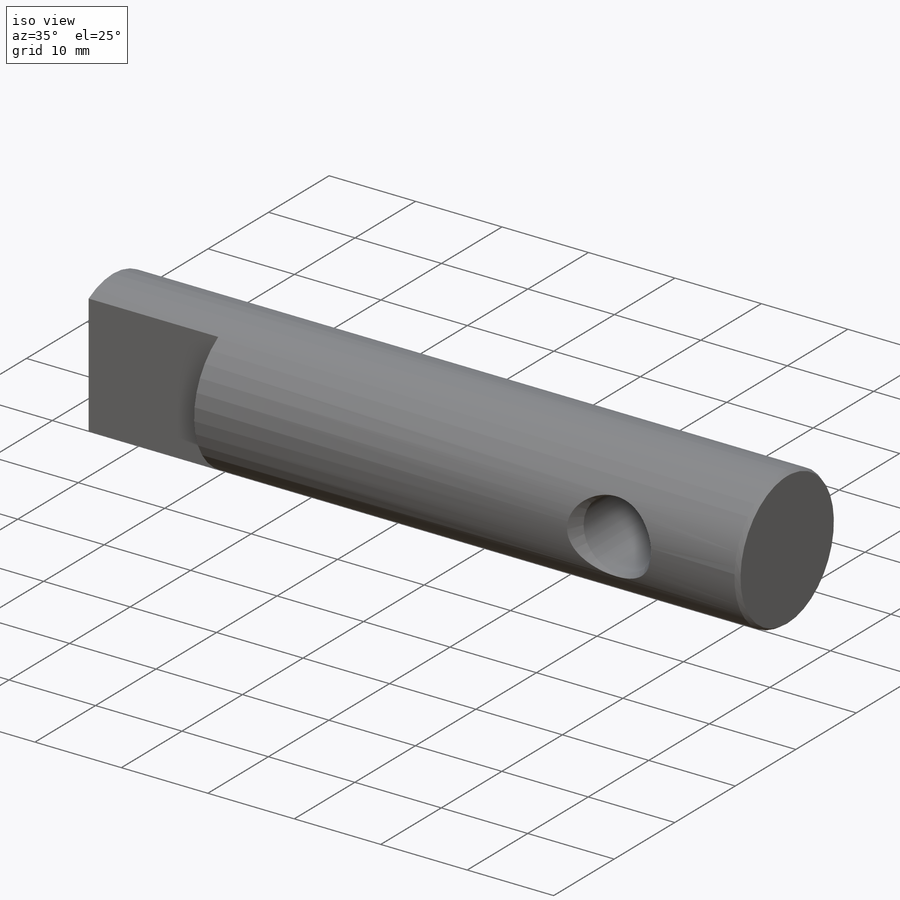
[diagram: iso view]
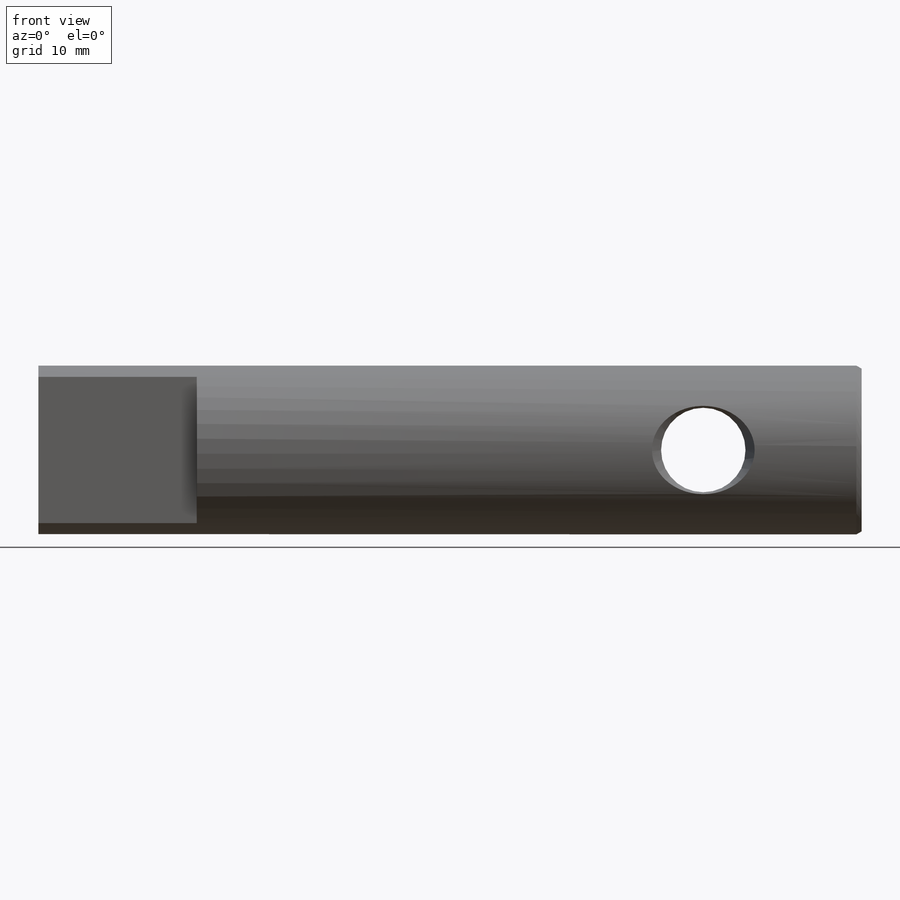
[diagram: front view]
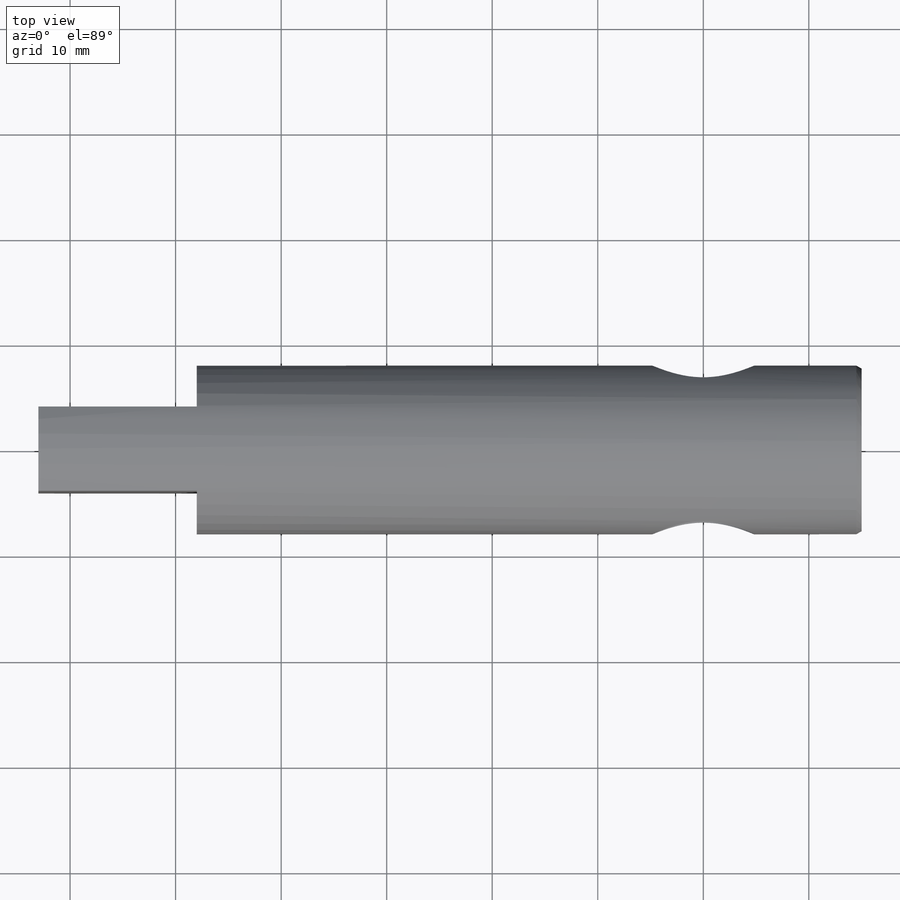
[diagram: top view]
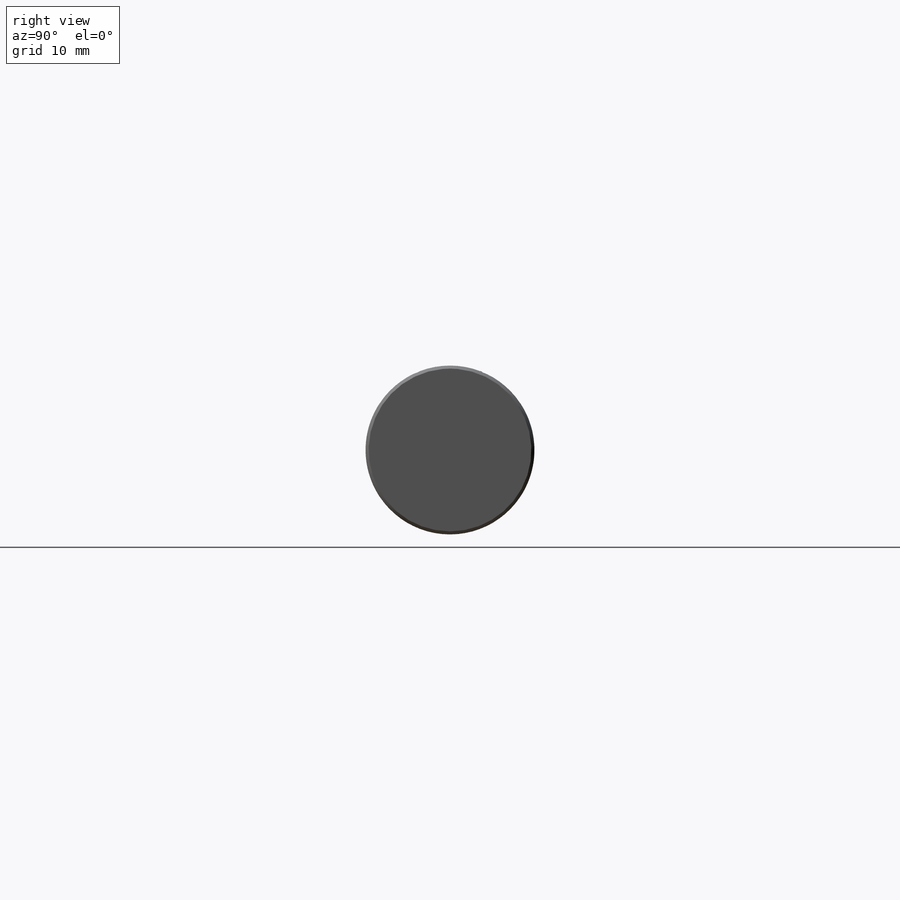
[diagram: right view]
SOLIDWORKS PART (.sldprt)
format: sldprt  version: not decoded by parser v0  size: 290,816 bytes
history: native  units: mm
features: sketch x5, plane x3, material x1, revolve x1, cut_revolve x1, cut_extrude x1, hole x1, thread x1 (+9 scaffold rows collapsed)
feature tree (23):
  scaffold x9  (default folders/planes/origin — collapsed)
  material  "1.4301 (X5CrNi18-10)"
  plane  "Vorne"
  plane  "Oben"
  plane  "Rechts"
  sketch  "Skizze2"  dims[c1.D1=8.0mm c1.D2=15.0mm c1.D3=8.0mm c1.D4=63.0mm c1.D5=~1.713367mm c2.D5=30.0deg c2.D6=0.5mm]
  revolve  "Rotation1"  Angle=360deg
  sketch  "Skizze3"  dims[c1.D1=~14.311681mm c2.D1=30.0deg c2.D2=~14.311681mm c3.D2=30.0deg c3.D3=1.5mm c3.D4=1.5mm c3.D5=4.0mm]
  cut_revolve  "Schnitt-Rotation1"  Angle=360deg
  sketch  "Skizze5"  dims[D1=8.0mm D2=20.0mm D3=10.0mm D4=4.0mm]
  cut_extrude  "Schnitt-Linear austragen1"  Depth=15mm
  hole  "M3 Gewindebohrung1"  Diameter=2.5mm Depth=8.5mm
  sketch  "Skizze7"
  sketch  "Skizze6"  dims[hole-wizard template sketch: 47 standard entries collapsed; hole parameters kept: c15.Bohrungstiefe=8.5mm c15.D3=~14.816244mm c15.Spitzenwinkel=118.0deg]
  thread  "Bohrungsgewinde1"  Diameter=6mm  [1 undecoded]
decode coverage: 9 of 10 modeling features carry decoded parameters
note: ~ marks probable driven/reference dimensions
note: 1 parameter value undecoded
note: suppression state not decoded; provenance and decode notes live in map.json
